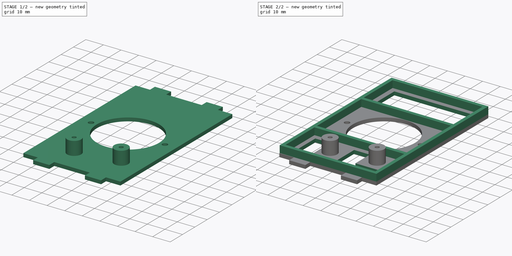
[diagram: build sequence overview — one tinted view per stage of 2, left to right]
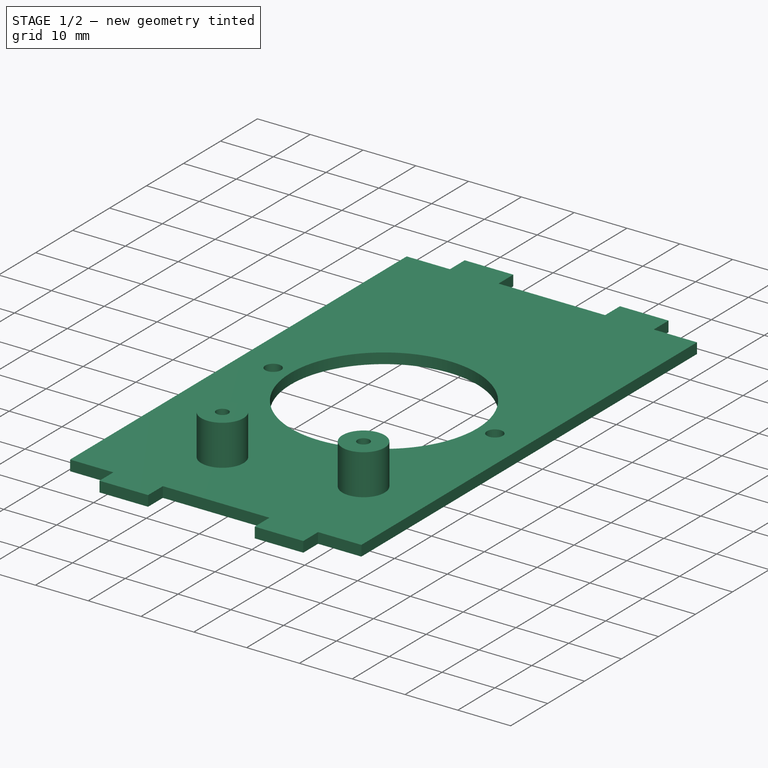
[diagram: stage 1 of 2 — iso view after this stage's code; geometry added in this stage tinted green]
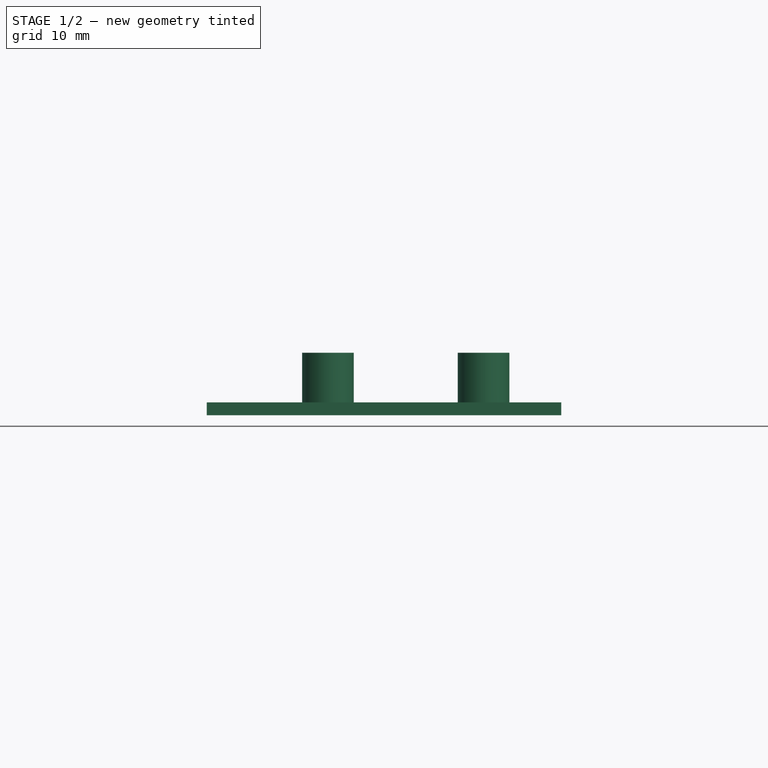
[diagram: stage 1 of 2 — front view after this stage's code; geometry added in this stage tinted green]
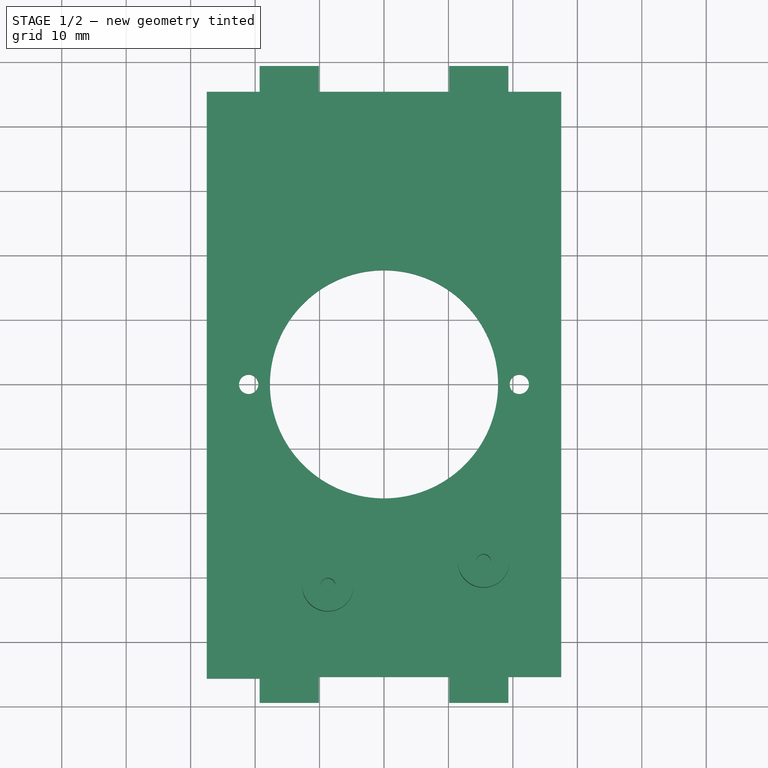
[diagram: stage 1 of 2 — top view after this stage's code; geometry added in this stage tinted green]
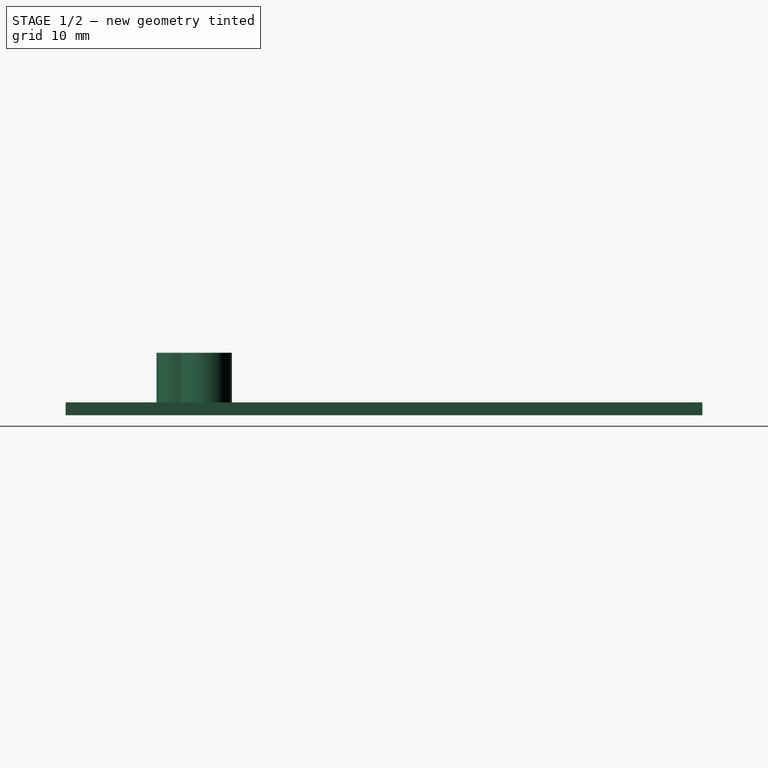
[diagram: stage 1 of 2 — right view after this stage's code; geometry added in this stage tinted green]
FCSTD DOCUMENT  (FreeCAD 0.15R4671 (Git))
Label: Rubiks Frame Side Small Steppers
License: All rights reserved
LicenseURL: http://en.wikipedia.org/wiki/All_rights_reserved
objects: Sketcher::SketchObject×4, PartDesign::Pad×3, PartDesign::Pocket×1
note: 12 computed .brp shape members not serialized (recipe doc carries the construction recipe); baked Part::Feature solids carry a one-line shape summary decoded from their .brp

FEATURE [Sketcher::SketchObject] Sketch
  Placement = pos=(0,0,2) rot=(0,0,1;0rad)
  sketch-geometry (23):
    g0: Circle CenterX=0 CenterY=0 CenterZ=0 NormalX=0 NormalY=0 NormalZ=1 Radius=17.7
    g1: Circle CenterX=-21 CenterY=0 CenterZ=0 NormalX=0 NormalY=0 NormalZ=1 Radius=1.5
    g2: Circle CenterX=21 CenterY=0 CenterZ=0 NormalX=0 NormalY=0 NormalZ=1 Radius=1.5
    g3: LineSegment StartX=-19.3 StartY=49.399 StartZ=0 EndX=-10.1 EndY=49.399 EndZ=0
    g4: LineSegment StartX=-10.1 StartY=49.399 StartZ=0 EndX=-10.1 EndY=45.401 EndZ=0
    g5: LineSegment StartX=-19.3 StartY=45.399 StartZ=0 EndX=-19.3 EndY=49.399 EndZ=0
    g6: LineSegment StartX=10.1 StartY=49.399 StartZ=0 EndX=19.3 EndY=49.399 EndZ=0
    g7: LineSegment StartX=19.3 StartY=49.399 StartZ=0 EndX=19.3 EndY=45.399 EndZ=0
    g8: LineSegment StartX=10.1 StartY=45.401 StartZ=0 EndX=10.1 EndY=49.399 EndZ=0
    g9: LineSegment StartX=19.3 StartY=-49.399 StartZ=0 EndX=10.1 EndY=-49.399 EndZ=0
    g10: LineSegment StartX=10.1 StartY=-49.399 StartZ=0 EndX=10.1 EndY=-45.401 EndZ=0
    g11: LineSegment StartX=19.3 StartY=-45.401 StartZ=0 EndX=19.3 EndY=-49.399 EndZ=0
    g12: LineSegment StartX=-10.1 StartY=-49.399 StartZ=0 EndX=-19.3 EndY=-49.399 EndZ=0
    g13: LineSegment StartX=-19.3 StartY=-49.399 StartZ=0 EndX=-19.3 EndY=-45.6499 EndZ=0
    g14: LineSegment StartX=-10.1 StartY=-45.401 StartZ=0 EndX=-10.1 EndY=-49.399 EndZ=0
    g15: LineSegment StartX=-10.1 StartY=45.401 StartZ=0 EndX=10.1 EndY=45.401 EndZ=0
    g16: LineSegment StartX=-10.1 StartY=-45.401 StartZ=0 EndX=10.1 EndY=-45.401 EndZ=0
    g17: LineSegment StartX=-19.3 StartY=-45.6499 StartZ=0 EndX=-27.5 EndY=-45.6499 EndZ=0
    g18: LineSegment StartX=-27.5 StartY=-45.6499 StartZ=0 EndX=-27.5 EndY=45.399 EndZ=0
    g19: LineSegment StartX=-27.5 StartY=45.399 StartZ=0 EndX=-19.3 EndY=45.399 EndZ=0
    g20: LineSegment StartX=19.3 StartY=45.399 StartZ=0 EndX=27.5 EndY=45.399 EndZ=0
    g21: LineSegment StartX=27.5 StartY=45.399 StartZ=0 EndX=27.5 EndY=-45.401 EndZ=0
    g22: LineSegment StartX=27.5 StartY=-45.401 StartZ=0 EndX=19.3 EndY=-45.401 EndZ=0
  constraints (64):
    c: Coincident(g0,g-1)
    c: Radius(g0) = 17.7
    c: Symmetric(g2,g1,g-2)
    c: Equal(g2,g1)
    c: Radius(g2) = 1.5
    c: PointOnObject(g2,g-1)
    c: DistanceX(g1,g2) = 42
    c: Coincident(g3,g4)
    c: Coincident(g5,g3)
    c: Horizontal(g3)
    c: Vertical(g4)
    c: Vertical(g5)
    c: Coincident(g6,g7)
    c: Coincident(g8,g6)
    c: Horizontal(g6)
    c: Vertical(g7)
    c: Vertical(g8)
    c: Coincident(g9,g10)
    c: Coincident(g11,g9)
    c: Horizontal(g9)
    c: Vertical(g10)
    c: Vertical(g11)
    c: Coincident(g12,g13)
    c: Coincident(g14,g12)
    c: Horizontal(g12)
    c: Vertical(g13)
    c: Vertical(g14)
    c: Equal(g5,g7)
    c: Equal(g11,g14)
    c: Symmetric(g6,g3,g-2)
    c: Symmetric(g14,g10,g-2)
    c: Symmetric(g4,g14,g-1)
    c: Distance(g5) = 4
    c: Distance(g3) = 9.2
    c: DistanceX(g3,g6) = 20.2
    c: Symmetric(g10,g8,g-1)
    c: Equal(g14,g10)
    c: Equal(g10,g8)
    c: Equal(g6,g3)
    c: Equal(g3,g12)
    c: Equal(g12,g9)
    c: Coincident(g15,g4)
    c: Coincident(g15,g8)
    c: Coincident(g16,g14)
    c: Coincident(g16,g10)
    c: Coincident(g17,g13)
    c: Horizontal(g17)
    c: Coincident(g18,g17)
    c: Vertical(g18)
    c: Coincident(g19,g5)
    c: Horizontal(g19)
    c: Coincident(g7,g20)
    c: Horizontal(g20)
    c: Coincident(g20,g21)
    c: Vertical(g21)
    c: Coincident(g21,g22)
    c: Coincident(g22,g11)
    c: Horizontal(g22)
    c: Coincident(g18,g19)
    c: Equal(g17,g22)
    c: Equal(g22,g20)
    c: Equal(g20,g19)
    c: DistanceX(g17,g21) = 55
    c: DistanceY(g6,g9) = -98.798
FEATURE [PartDesign::Pad] Pad
  Length = 2
  Length2 = 100
  Placement = pos=(0,0,2) rot=(0,0,1;0rad)
  Sketch = -> Sketch
  Type = 0
FEATURE [Sketcher::SketchObject] Sketch001
  Placement = pos=(0,0,4) rot=(0,0,1;0rad)
  Support = -> Pad [Face25]
  sketch-geometry (8):
    g0: LineSegment [constr] StartX=-24.3 StartY=-21 StartZ=0 EndX=24.3 EndY=-21 EndZ=0
    g1: LineSegment [constr] StartX=24.3 StartY=-21 StartZ=0 EndX=24.3 EndY=-41.4 EndZ=0
    g2: LineSegment [constr] StartX=24.3 StartY=-41.4 StartZ=0 EndX=-24.3 EndY=-41.4 EndZ=0
    g3: LineSegment [constr] StartX=-24.3 StartY=-41.4 StartZ=0 EndX=-24.3 EndY=-21 EndZ=0
    g4: Circle CenterX=15.45 CenterY=-27.6 CenterZ=0 NormalX=0 NormalY=0 NormalZ=1 Radius=4
    g5: Circle CenterX=-8.7 CenterY=-31.3 CenterZ=0 NormalX=0 NormalY=0 NormalZ=1 Radius=4
    g6: Circle CenterX=15.45 CenterY=-27.6 CenterZ=0 NormalX=0 NormalY=0 NormalZ=1 Radius=1.15
    g7: Circle CenterX=-8.7 CenterY=-31.3 CenterZ=0 NormalX=0 NormalY=0 NormalZ=1 Radius=1.15
  constraints (22):
    c: Coincident(g0,g1)
    c: Coincident(g1,g2)
    c: Coincident(g2,g3)
    c: Coincident(g3,g0)
    c: Horizontal(g0)
    c: Horizontal(g2)
    c: Vertical(g1)
    c: Vertical(g3)
    c: Distance(g0) = 48.6
    c: Distance(g1) = 20.4
    c: Symmetric(g0,g0,g-2)
    c: DistanceY(g-1,g0) = -21
    c: Radius(g4) = 4
    c: Radius(g5) = 4
    c: DistanceX(g0,g4) = -8.85
    c: DistanceY(g4,g0) = 6.6
    c: DistanceY(g5,g0) = 10.3
    c: DistanceX(g0,g5) = 15.6
    c: Coincident(g6,g4)
    c: Coincident(g7,g5)
    c: Equal(g7,g6)
    c: Radius(g7) = 1.15
FEATURE [PartDesign::Pad] Pad001
  Length = 7.7
  Length2 = 100
  Placement = pos=(0,0,2) rot=(0,0,1;0rad)
  Sketch = -> Sketch001
  Type = 0
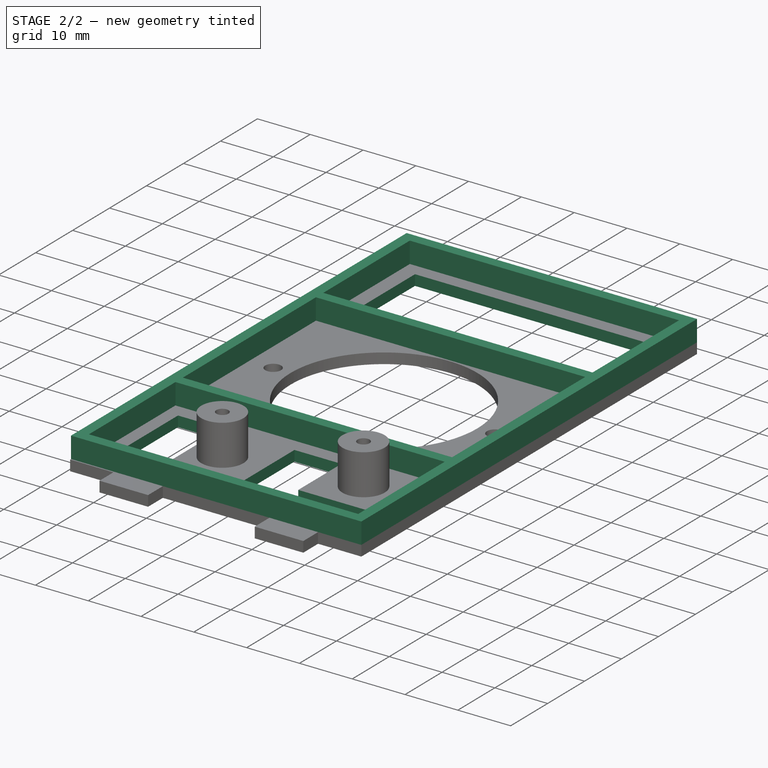
[diagram: stage 2 of 2 — iso view after this stage's code; geometry added in this stage tinted green]
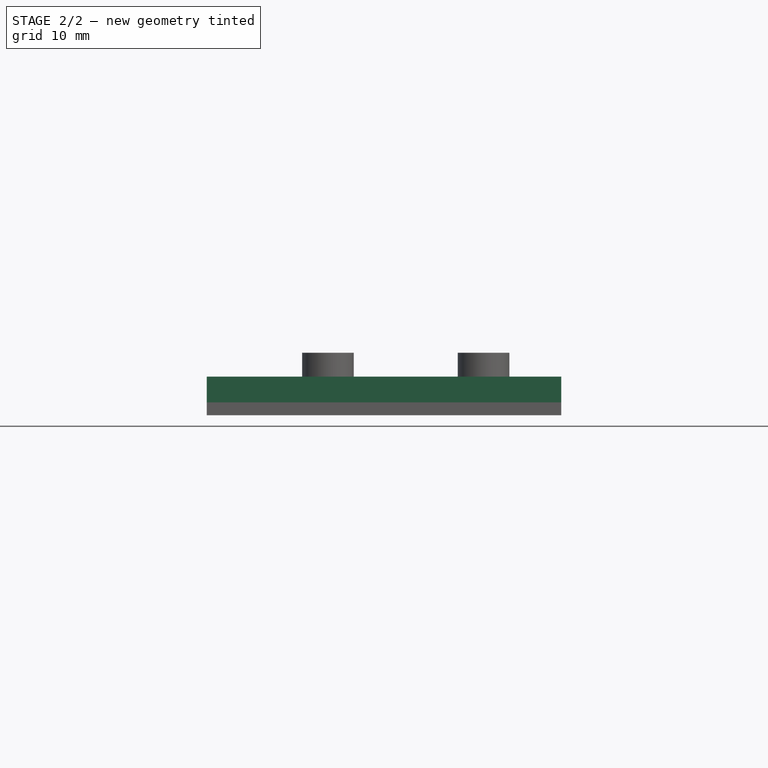
[diagram: stage 2 of 2 — front view after this stage's code; geometry added in this stage tinted green]
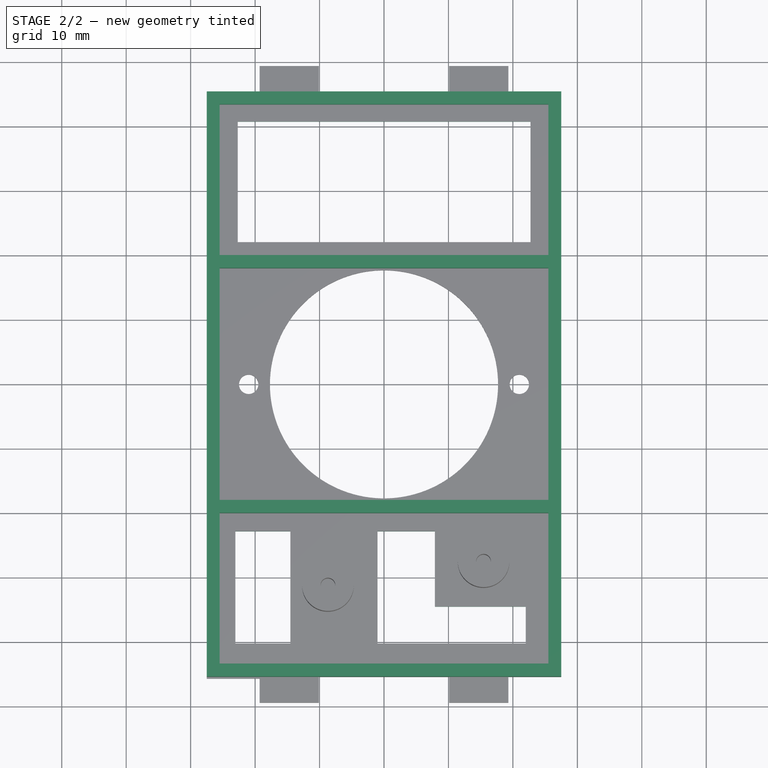
[diagram: stage 2 of 2 — top view after this stage's code; geometry added in this stage tinted green]
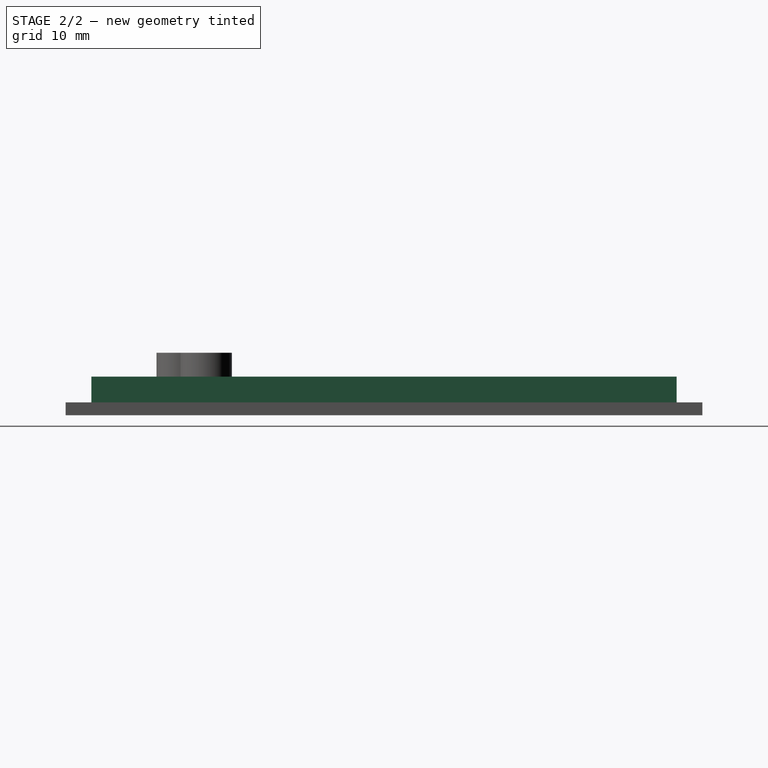
[diagram: stage 2 of 2 — right view after this stage's code; geometry added in this stage tinted green]
FEATURE [Sketcher::SketchObject] Sketch002
  Placement = pos=(0,0,4) rot=(0,0,1;0rad)
  Support = -> Pad001 [Face5]
  sketch-geometry (16):
    g0: LineSegment StartX=-25.5 StartY=18 StartZ=0 EndX=25.5 EndY=18 EndZ=0
    g1: LineSegment StartX=25.5 StartY=18 StartZ=0 EndX=25.5 EndY=-18 EndZ=0
    g2: LineSegment StartX=25.5 StartY=-18 StartZ=0 EndX=-25.5 EndY=-18 EndZ=0
    g3: LineSegment StartX=-25.5 StartY=-18 StartZ=0 EndX=-25.5 EndY=18 EndZ=0
    g4: LineSegment StartX=-27.5 StartY=45.4 StartZ=0 EndX=27.5 EndY=45.4 EndZ=0
    g5: LineSegment StartX=27.5 StartY=45.4 StartZ=0 EndX=27.5 EndY=-45.4 EndZ=0
    g6: LineSegment StartX=27.5 StartY=-45.4 StartZ=0 EndX=-27.5 EndY=-45.4 EndZ=0
    g7: LineSegment StartX=-27.5 StartY=-45.4 StartZ=0 EndX=-27.5 EndY=45.4 EndZ=0
    g8: LineSegment StartX=-25.5 StartY=43.4 StartZ=0 EndX=25.5 EndY=43.4 EndZ=0
    g9: LineSegment StartX=25.5 StartY=43.4 StartZ=0 EndX=25.5 EndY=20 EndZ=0
    g10: LineSegment StartX=25.5 StartY=20 StartZ=0 EndX=-25.5 EndY=20 EndZ=0
    g11: LineSegment StartX=-25.5 StartY=20 StartZ=0 EndX=-25.5 EndY=43.4 EndZ=0
    g12: LineSegment StartX=-25.5 StartY=-20 StartZ=0 EndX=25.5 EndY=-20 EndZ=0
    g13: LineSegment StartX=25.5 StartY=-20 StartZ=0 EndX=25.5 EndY=-43.4 EndZ=0
    g14: LineSegment StartX=25.5 StartY=-43.4 StartZ=0 EndX=-25.5 EndY=-43.4 EndZ=0
    g15: LineSegment StartX=-25.5 StartY=-43.4 StartZ=0 EndX=-25.5 EndY=-20 EndZ=0
  constraints (48):
    c: Coincident(g0,g1)
    c: Coincident(g1,g2)
    c: Coincident(g2,g3)
    c: Coincident(g3,g0)
    c: Horizontal(g0)
    c: Horizontal(g2)
    c: Vertical(g1)
    c: Vertical(g3)
    c: Distance(g0) = 51
    c: Symmetric(g0,g0,g-2)
    c: Symmetric(g0,g1,g-1)
    c: Distance(g1) = 36
    c: Coincident(g4,g5)
    c: Coincident(g5,g6)
    c: Coincident(g6,g7)
    c: Coincident(g7,g4)
    c: Horizontal(g4)
    c: Horizontal(g6)
    c: Vertical(g5)
    c: Vertical(g7)
    c: Coincident(g8,g9)
    c: Coincident(g9,g10)
    c: Coincident(g10,g11)
    c: Coincident(g11,g8)
    c: Horizontal(g8)
    c: Horizontal(g10)
    c: Vertical(g9)
    c: Vertical(g11)
    c: Coincident(g12,g13)
    c: Coincident(g13,g14)
    c: Coincident(g14,g15)
    c: Coincident(g15,g12)
    c: Horizontal(g12)
    c: Horizontal(g14)
    c: Vertical(g13)
    c: Vertical(g15)
    c: Symmetric(g12,g12,g-2)
    c: Symmetric(g9,g10,g-2)
    c: Symmetric(g4,g4,g-2)
    c: Equal(g12,g2)
    c: Equal(g2,g10)
    c: Equal(g9,g13)
    c: DistanceY(g9,g0) = -2
    c: DistanceY(g8,g4) = 2
    c: DistanceX(g8,g4) = 2
    c: DistanceY(g12,g1) = 2
    c: DistanceY(g5,g13) = 2
    c: DistanceY(g6,g4) = 90.8
FEATURE [PartDesign::Pad] Pad002
  Length = 4
  Length2 = 100
  Placement = pos=(0,0,2) rot=(0,0,1;0rad)
  Sketch = -> Sketch002
  Type = 0
FEATURE [Sketcher::SketchObject] Sketch003
  Placement = pos=(0,0,4) rot=(0,0,1;0rad)
  Support = -> Pad002 [Face32]
  sketch-geometry (16):
    g0: LineSegment StartX=-22.6874 StartY=40.7818 StartZ=0 EndX=22.7286 EndY=40.7818 EndZ=0
    g1: LineSegment StartX=22.7286 StartY=40.7818 StartZ=0 EndX=22.7286 EndY=22.0592 EndZ=0
    g2: LineSegment StartX=22.7286 StartY=22.0592 StartZ=0 EndX=-22.6874 EndY=22.0592 EndZ=0
    g3: LineSegment StartX=-22.6874 StartY=22.0592 StartZ=0 EndX=-22.6874 EndY=40.7818 EndZ=0
    g4: LineSegment StartX=-23.0582 StartY=-22.8007 StartZ=0 EndX=-14.5311 EndY=-22.8007 EndZ=0
    g5: LineSegment StartX=-14.5311 StartY=-22.8007 StartZ=0 EndX=-14.5311 EndY=-40.2256 EndZ=0
    g6: LineSegment StartX=-14.5311 StartY=-40.2256 StartZ=0 EndX=-23.0582 EndY=-40.2256 EndZ=0
    g7: LineSegment StartX=-23.0582 StartY=-40.2256 StartZ=0 EndX=-23.0582 EndY=-22.8007 EndZ=0
    g8: LineSegment StartX=-0.998942 StartY=-22.8007 StartZ=0 EndX=7.8989 EndY=-22.8007 EndZ=0
    g9: LineSegment StartX=-0.998942 StartY=-40.2256 StartZ=0 EndX=-0.998942 EndY=-22.8007 EndZ=0
    g10: LineSegment StartX=7.8989 StartY=-22.8007 StartZ=0 EndX=7.8989 EndY=-34.4791 EndZ=0
    g11: LineSegment StartX=7.8989 StartY=-34.4791 StartZ=0 EndX=21.9871 EndY=-34.4791 EndZ=0
    g12: LineSegment StartX=21.9871 StartY=-34.4791 StartZ=0 EndX=21.9871 EndY=-40.2256 EndZ=0
    g13: LineSegment StartX=21.9871 StartY=-40.2256 StartZ=0 EndX=-0.998942 EndY=-40.2256 EndZ=0
    g14: LineSegment [constr] StartX=-14.5311 StartY=-40.2256 StartZ=0 EndX=-0.998942 EndY=-40.2256 EndZ=0
    g15: LineSegment [constr] StartX=-14.5311 StartY=-22.8007 StartZ=0 EndX=-0.998942 EndY=-22.8007 EndZ=0
  constraints (34):
    c: Coincident(g0,g1)
    c: Coincident(g1,g2)
    c: Coincident(g2,g3)
    c: Coincident(g3,g0)
    c: Horizontal(g0)
    c: Horizontal(g2)
    c: Vertical(g1)
    c: Vertical(g3)
    c: Coincident(g4,g5)
    c: Coincident(g5,g6)
    c: Coincident(g6,g7)
    c: Coincident(g7,g4)
    c: Horizontal(g4)
    c: Horizontal(g6)
    c: Vertical(g5)
    c: Vertical(g7)
    c: Coincident(g9,g8)
    c: Horizontal(g8)
    c: Vertical(g9)
    c: Coincident(g8,g10)
    c: Vertical(g10)
    c: Coincident(g10,g11)
    c: Horizontal(g11)
    c: Coincident(g11,g12)
    c: Vertical(g12)
    c: Coincident(g12,g13)
    c: Coincident(g13,g9)
    c: Horizontal(g13)
    c: Coincident(g14,g5)
    c: Coincident(g14,g9)
    c: Horizontal(g14)
    c: Coincident(g15,g4)
    c: Coincident(g15,g8)
    c: Horizontal(g15)
FEATURE [PartDesign::Pocket] Pocket
  Length = 5
  Placement = pos=(0,0,2) rot=(0,0,1;0rad)
  Sketch = -> Sketch003
  Type = 1
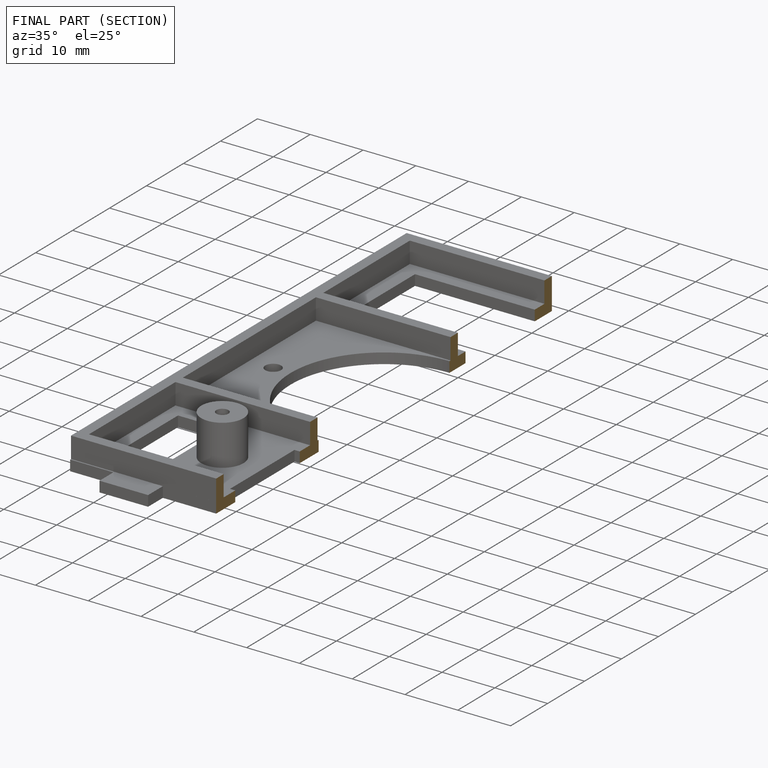
[diagram: finished part — half-section view (interior)]
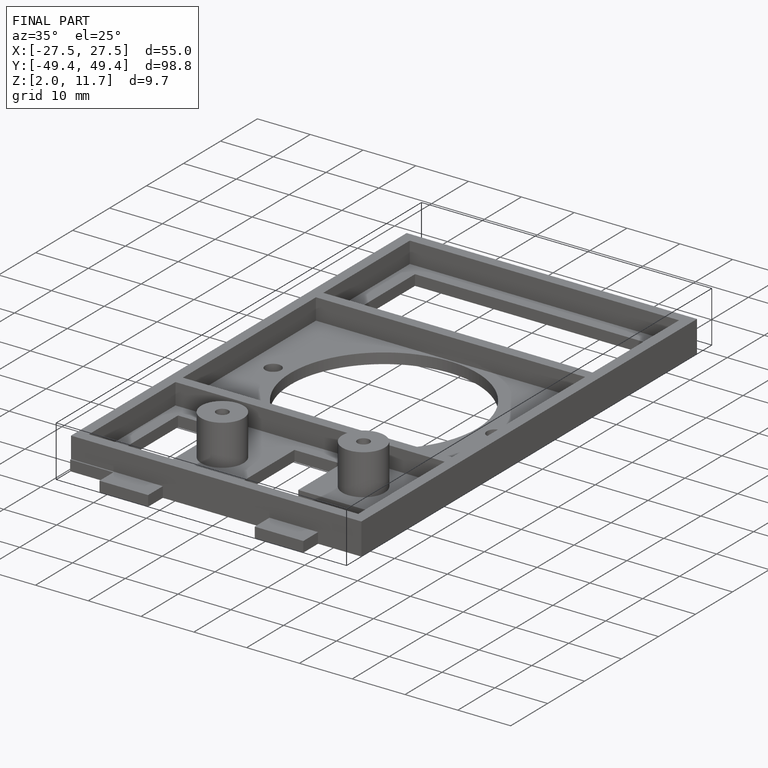
[diagram: finished part — iso view with bounding-box wireframe]
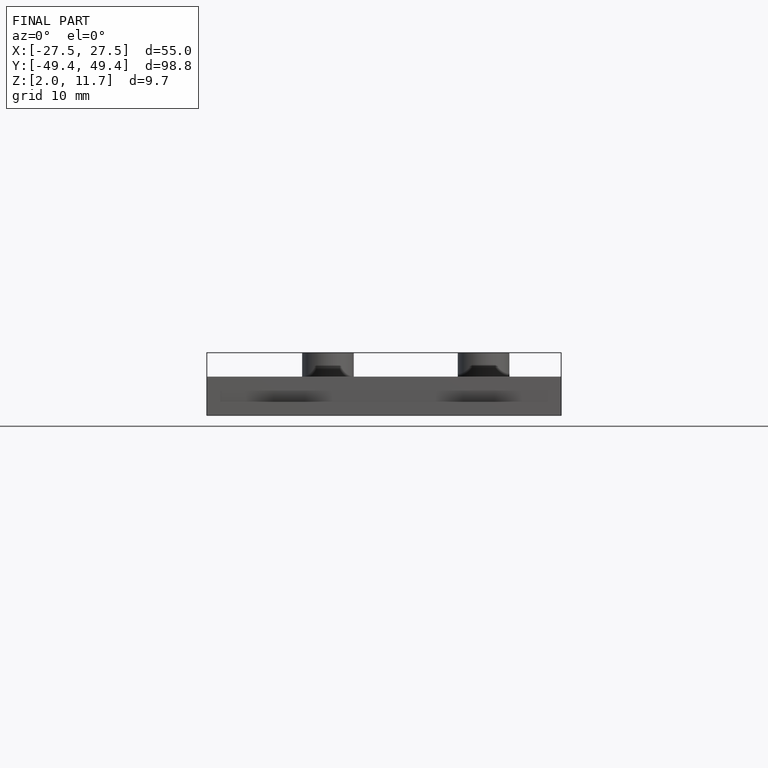
[diagram: finished part — front view with bounding-box wireframe]
